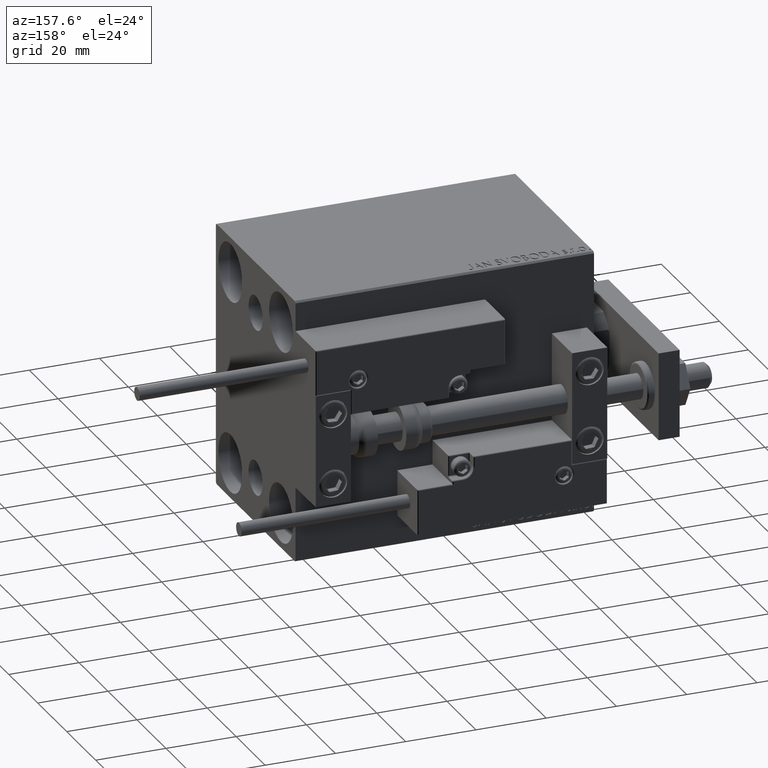
[diagram: clean part render]
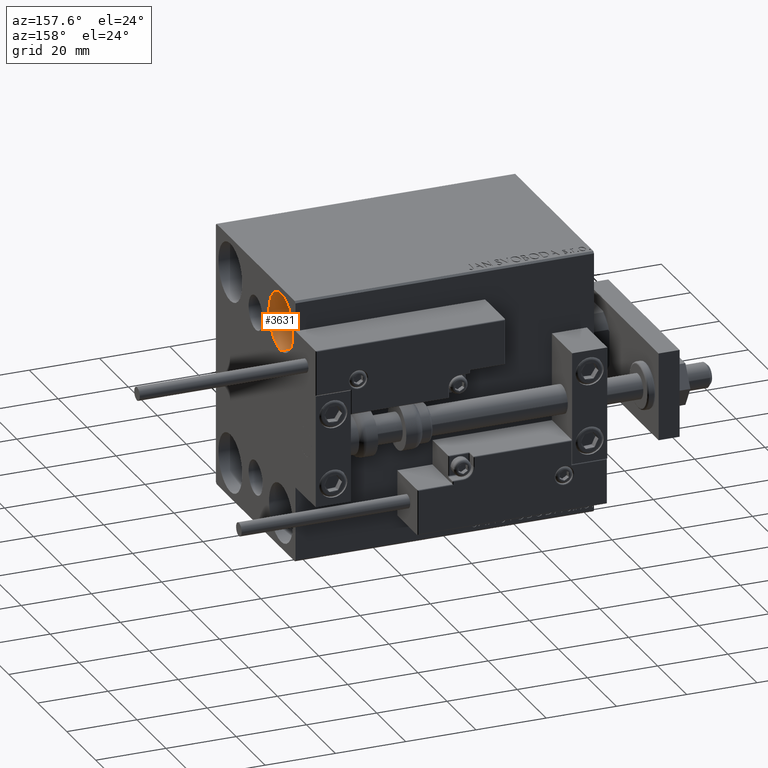
[diagram: same view with one face highlighted and labeled with its STEP entity id]
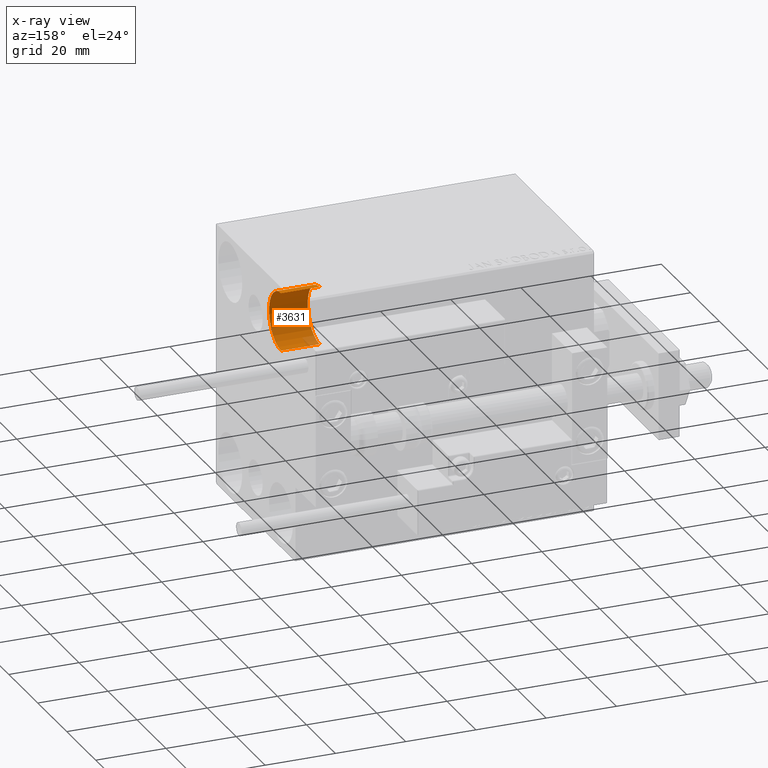
[diagram: x-ray of the same camera — body ghosted, the highlighted face saturated]
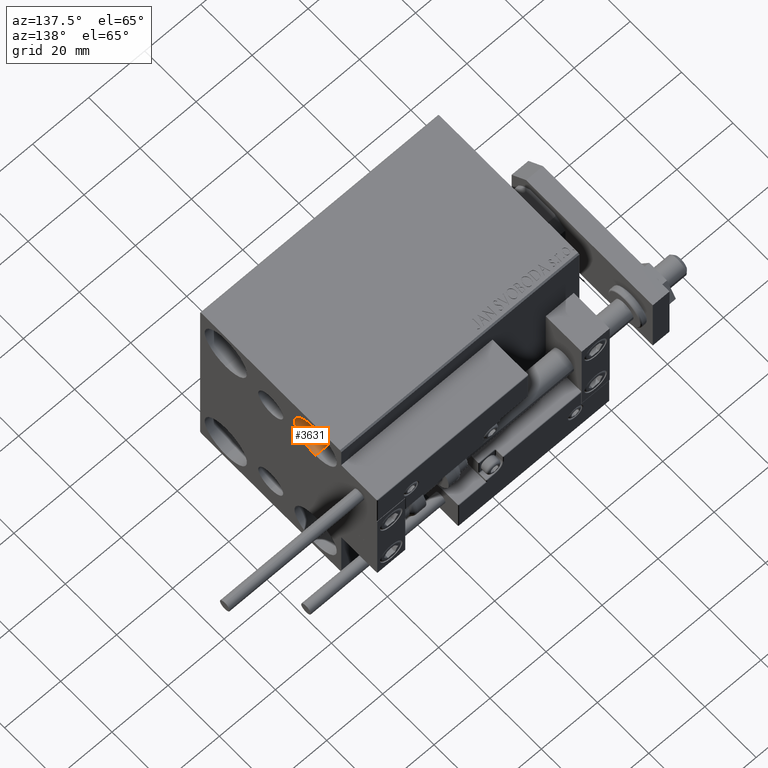
[diagram: same view with one face highlighted and labeled with its STEP entity id]
A machine part, auxiliary view. The second image highlights one B-rep face of the part: STEP entity #3631.
The next image is the same camera in x-ray: the body ghosted, the highlighted face saturated — about 5% of this face is hidden behind the body in this view.
A second angle (auxiliary view) of the same face is appended — the face is thin or edge-on in the first view.
In plain terms, the highlighted cylindrical surface (edge-blend (fillet) strip) has radius 8.25 mm, axis along (1, 0, 0).
Its self-contained STEP definition (entity closure, byte-faithful):
#34 = EDGE_CURVE ( 'NONE', #36074, #7806, #31293, .T. ) ;
#3631 = ADVANCED_FACE ( 'NONE', ( #46477 ), #11910, .F. ) ;
#4551 = EDGE_LOOP ( 'NONE', ( #19218, #26948, #22872, #22186 ) ) ;
#6396 = CARTESIAN_POINT ( 'NONE',  ( 74.00000000000001421, 17.50000000000000355, 19.25000000000000000 ) ) ;
#7734 = VECTOR ( 'NONE', #40694, 1000.000000000000000 ) ;
#7806 = VERTEX_POINT ( 'NONE', #26217 ) ;
#8117 = CARTESIAN_POINT ( 'NONE',  ( 74.00000000000001421, 17.50000000000000355, 27.49999999999999645 ) ) ;
#9226 = AXIS2_PLACEMENT_3D ( 'NONE', #49006, #22999, #34342 ) ;
#10924 = LINE ( 'NONE', #6396, #7734 ) ;
#11673 = CIRCLE ( 'NONE', #19744, 8.249999999999992895 ) ;
#11910 = CYLINDRICAL_SURFACE ( 'NONE', #14488, 8.249999999999996447 ) ;
#14488 = AXIS2_PLACEMENT_3D ( 'NONE', #8117, #27775, #36100 ) ;
#18778 = CARTESIAN_POINT ( 'NONE',  ( 85.00000000000000000, 17.50000000000000355, 19.25000000000000000 ) ) ;
#19218 = ORIENTED_EDGE ( 'NONE', *, *, #40198, .T. ) ;
#19744 = AXIS2_PLACEMENT_3D ( 'NONE', #40991, #49319, #29129 ) ;
#19972 = VECTOR ( 'NONE', #38864, 1000.000000000000000 ) ;
#22186 = ORIENTED_EDGE ( 'NONE', *, *, #48157, .F. ) ;
#22872 = ORIENTED_EDGE ( 'NONE', *, *, #40889, .F. ) ;
#22999 = DIRECTION ( 'NONE',  ( -1.000000000000000000, -0.000000000000000000, -0.000000000000000000 ) ) ;
#23211 = CARTESIAN_POINT ( 'NONE',  ( 74.00000000000001421, 17.50000000000000355, 35.74999999999999289 ) ) ;
#24100 = VERTEX_POINT ( 'NONE', #18778 ) ;
#26217 = CARTESIAN_POINT ( 'NONE',  ( 85.00000000000000000, 17.50000000000000355, 35.74999999999999289 ) ) ;
#26948 = ORIENTED_EDGE ( 'NONE', *, *, #34, .T. ) ;
#27715 = CIRCLE ( 'NONE', #9226, 8.249999999999992895 ) ;
#27775 = DIRECTION ( 'NONE',  ( 1.000000000000000000, -0.000000000000000000, -0.000000000000000000 ) ) ;
#29129 = DIRECTION ( 'NONE',  ( 0.000000000000000000, 0.000000000000000000, 1.000000000000000000 ) ) ;
#31293 = LINE ( 'NONE', #46457, #19972 ) ;
#34342 = DIRECTION ( 'NONE',  ( 0.000000000000000000, 0.000000000000000000, 1.000000000000000000 ) ) ;
#35876 = CARTESIAN_POINT ( 'NONE',  ( 74.00000000000001421, 17.50000000000000355, 19.25000000000000000 ) ) ;
#36074 = VERTEX_POINT ( 'NONE', #23211 ) ;
#36100 = DIRECTION ( 'NONE',  ( 0.000000000000000000, 0.000000000000000000, -1.000000000000000000 ) ) ;
#38864 = DIRECTION ( 'NONE',  ( 1.000000000000000000, -0.000000000000000000, -0.000000000000000000 ) ) ;
#40198 = EDGE_CURVE ( 'NONE', #42838, #36074, #27715, .T. ) ;
#40694 = DIRECTION ( 'NONE',  ( 1.000000000000000000, -0.000000000000000000, -0.000000000000000000 ) ) ;
#40889 = EDGE_CURVE ( 'NONE', #24100, #7806, #11673, .T. ) ;
#40991 = CARTESIAN_POINT ( 'NONE',  ( 85.00000000000000000, 17.50000000000000355, 27.49999999999999645 ) ) ;
#42838 = VERTEX_POINT ( 'NONE', #35876 ) ;
#46457 = CARTESIAN_POINT ( 'NONE',  ( 74.00000000000001421, 17.50000000000000355, 35.74999999999999289 ) ) ;
#46477 = FACE_OUTER_BOUND ( 'NONE', #4551, .T. ) ;
#48157 = EDGE_CURVE ( 'NONE', #42838, #24100, #10924, .T. ) ;
#49006 = CARTESIAN_POINT ( 'NONE',  ( 74.00000000000001421, 17.50000000000000355, 27.49999999999999645 ) ) ;
#49319 = DIRECTION ( 'NONE',  ( -1.000000000000000000, -0.000000000000000000, -0.000000000000000000 ) ) ;